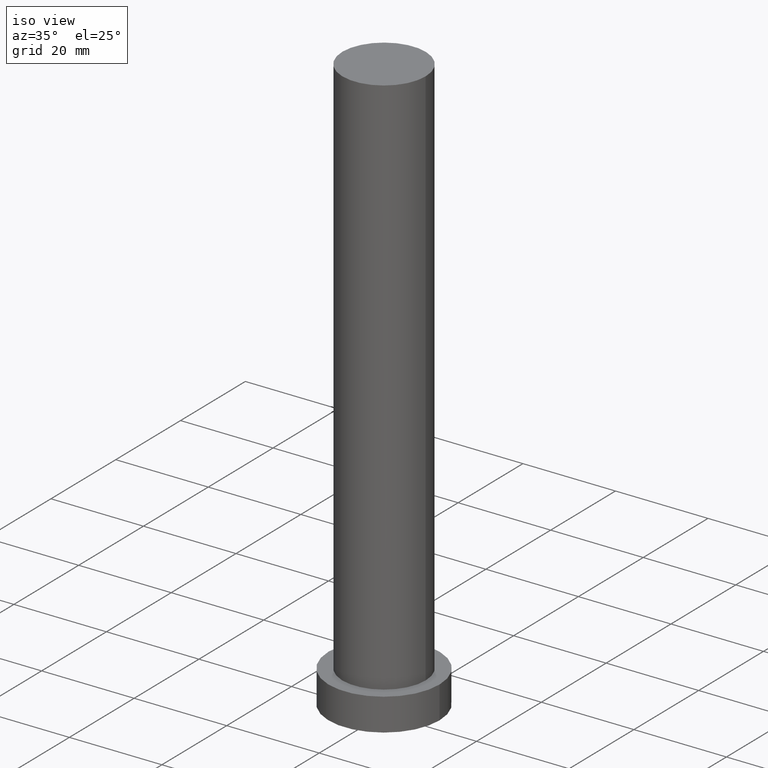
[diagram: clean part render]
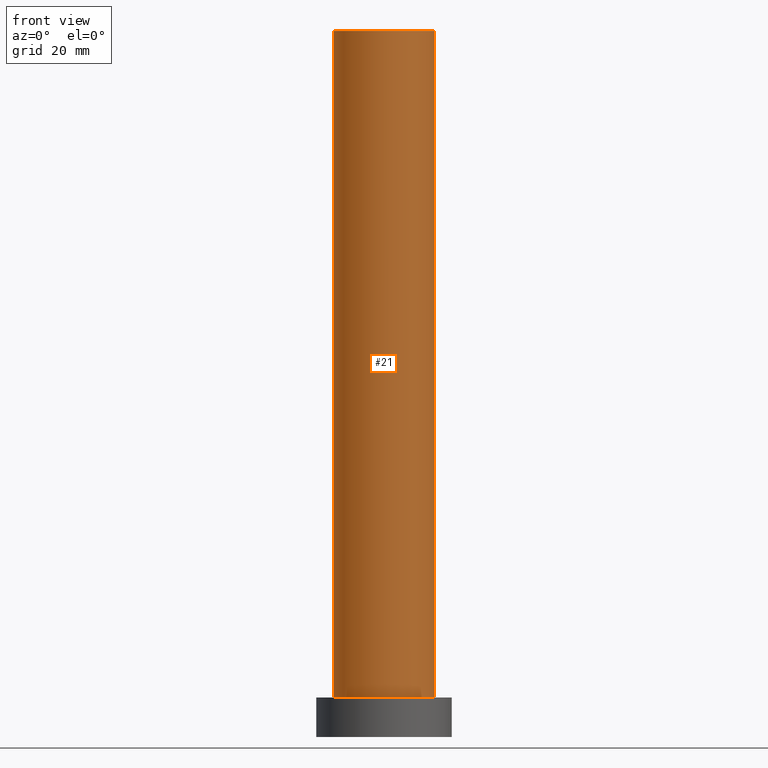
[diagram: tour spotlight — one face highlighted and labeled with its STEP entity id]
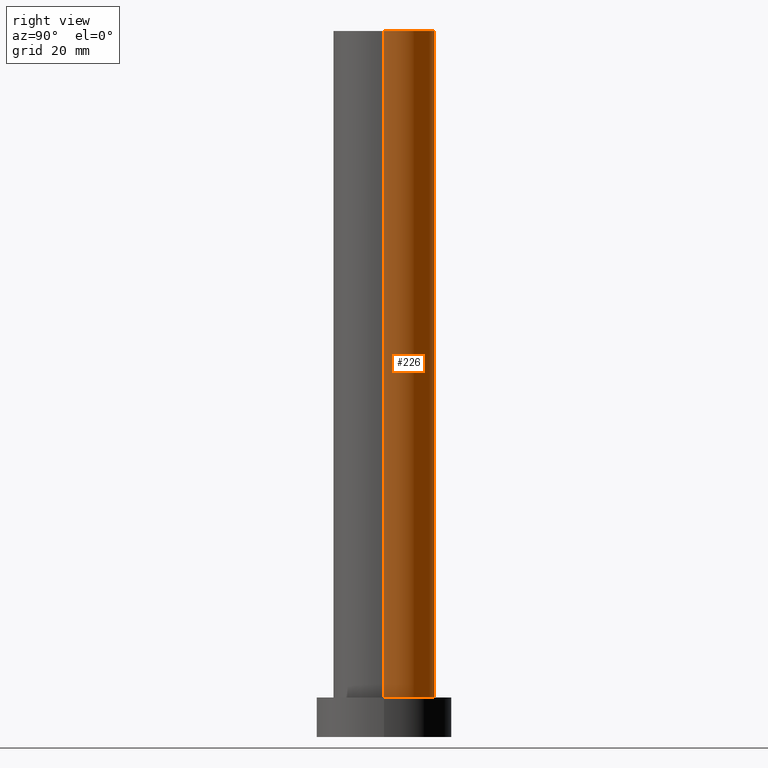
[diagram: tour spotlight — one face highlighted and labeled with its STEP entity id]
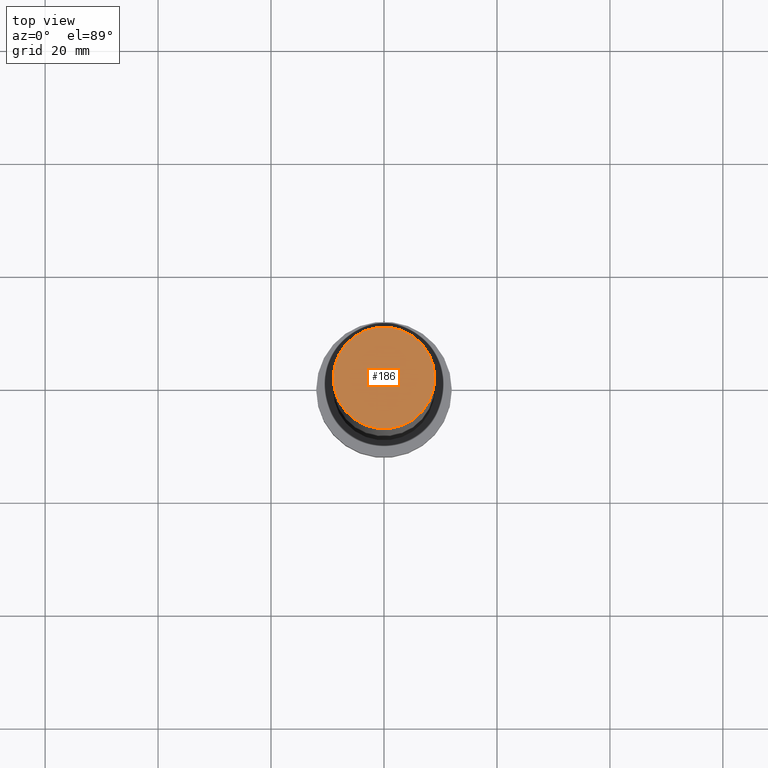
[diagram: tour spotlight — one face highlighted and labeled with its STEP entity id]
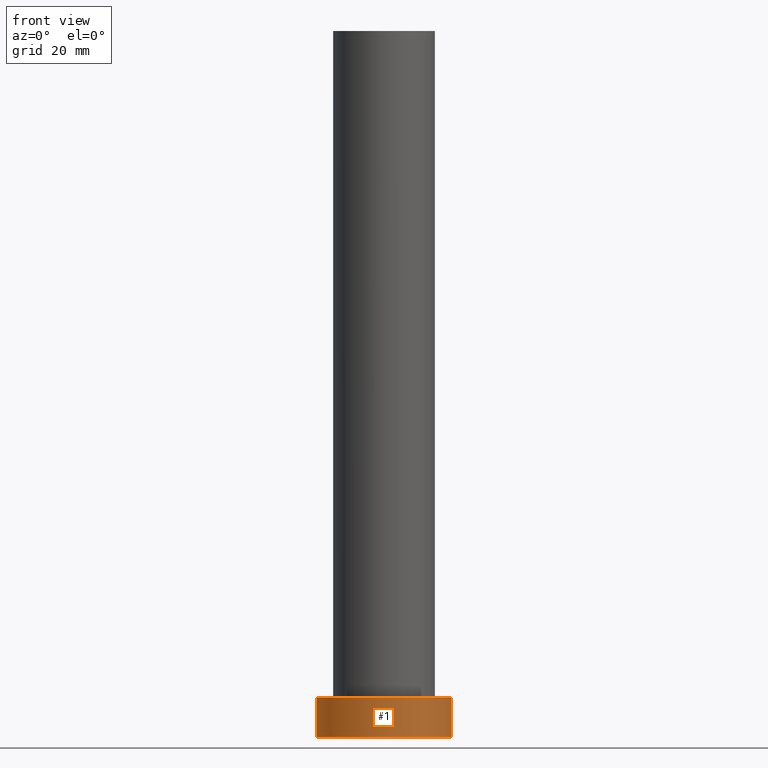
[diagram: tour spotlight — one face highlighted and labeled with its STEP entity id]
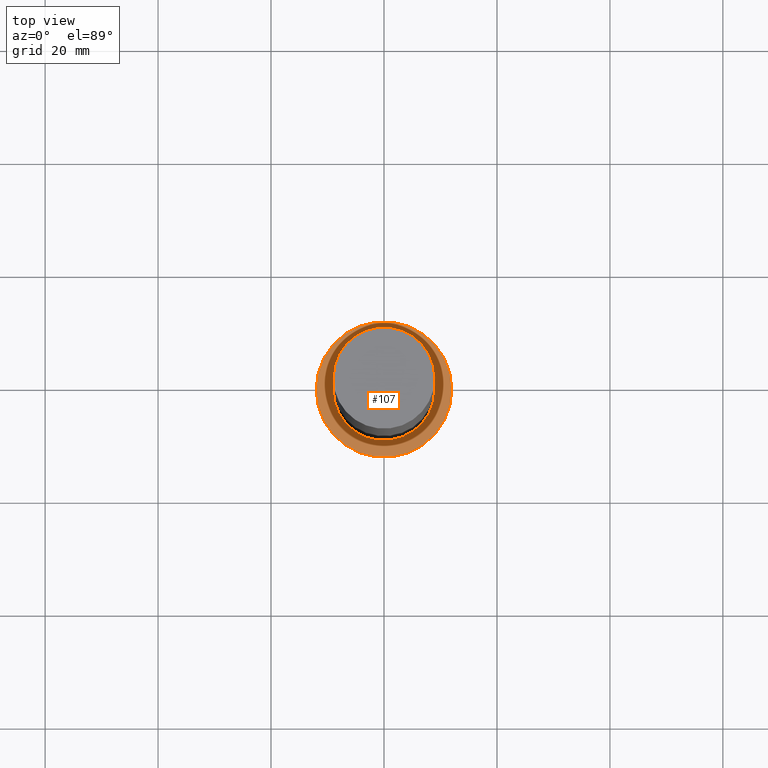
[diagram: tour spotlight — one face highlighted and labeled with its STEP entity id]
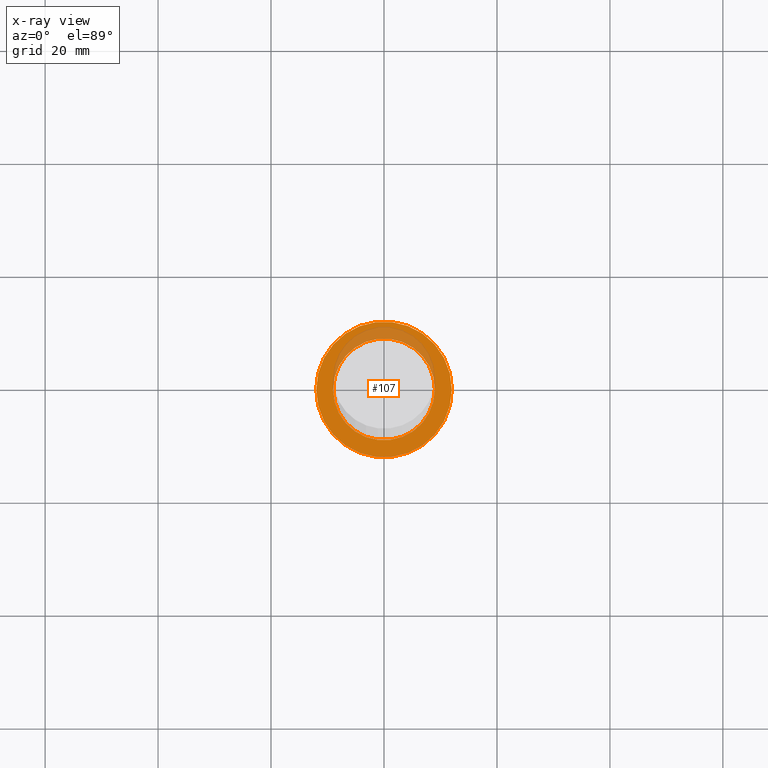
[diagram: x-ray of the same camera — body ghosted, this tour face saturated]
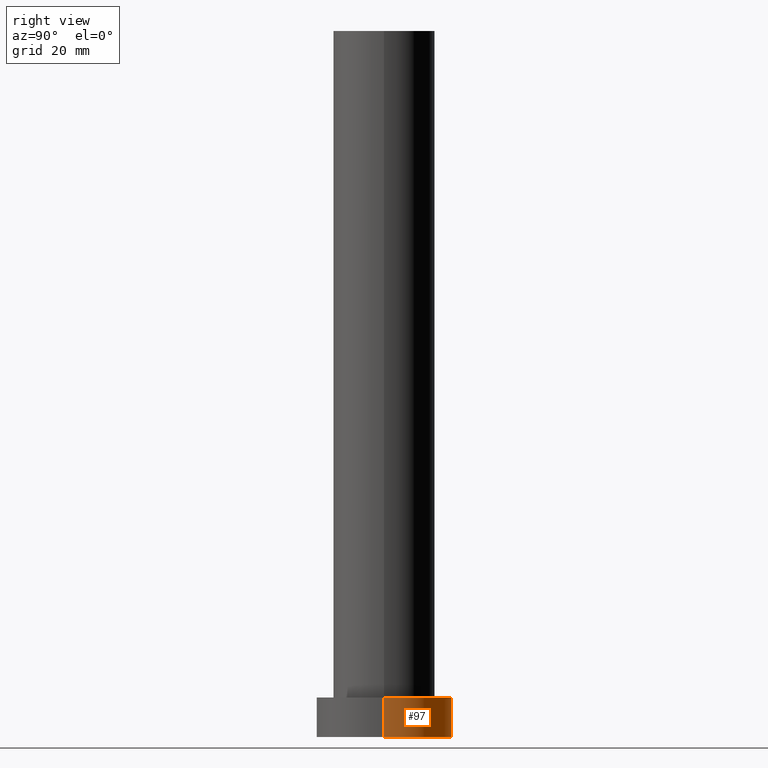
[diagram: tour spotlight — one face highlighted and labeled with its STEP entity id]
A machine part: a face-by-face anatomy tour. The part has 7 B-rep faces; the first image is the clean iso view, then the 6 largest visible faces are spotlighted one at a time (largest first), each with its STEP entity span.

Face 1 — front view, entity #21. In plain terms, the highlighted cylindrical surface (partial cylindrical patch) has radius 9 mm, axis along (-0, -0, -1).
Definition (entity closure, byte-faithful):
#2 = ORIENTED_EDGE ( 'NONE', *, *, #130, .T. ) ;
#8 = CARTESIAN_POINT ( 'NONE',  ( 0.000000000000000000, 0.000000000000000000, 125.0000000000000000 ) ) ;
#21 = ADVANCED_FACE ( 'NONE', ( #222 ), #67, .T. ) ;
#23 = EDGE_LOOP ( 'NONE', ( #163, #81, #2, #127 ) ) ;
#24 = AXIS2_PLACEMENT_3D ( 'NONE', #164, #241, #168 ) ;
#29 = AXIS2_PLACEMENT_3D ( 'NONE', #8, #239, #66 ) ;
#44 = CIRCLE ( 'NONE', #24, 9.000000000000000000 ) ;
#57 = EDGE_CURVE ( 'NONE', #106, #63, #44, .T. ) ;
#63 = VERTEX_POINT ( 'NONE', #215 ) ;
#66 = DIRECTION ( 'NONE',  ( -1.000000000000000000, 0.000000000000000000, 0.000000000000000000 ) ) ;
#67 = CYLINDRICAL_SURFACE ( 'NONE', #29, 9.000000000000000000 ) ;
#74 = DIRECTION ( 'NONE',  ( -0.000000000000000000, -0.000000000000000000, -1.000000000000000000 ) ) ;
#79 = DIRECTION ( 'NONE',  ( 1.000000000000000000, 0.000000000000000000, 0.000000000000000000 ) ) ;
#81 = ORIENTED_EDGE ( 'NONE', *, *, #57, .F. ) ;
#83 = VERTEX_POINT ( 'NONE', #178 ) ;
#84 = CARTESIAN_POINT ( 'NONE',  ( 0.000000000000000000, 0.000000000000000000, 7.000000000000000000 ) ) ;
#96 = LINE ( 'NONE', #116, #254 ) ;
#98 = VERTEX_POINT ( 'NONE', #245 ) ;
#106 = VERTEX_POINT ( 'NONE', #203 ) ;
#116 = CARTESIAN_POINT ( 'NONE',  ( 9.000000000000000000, 1.102182119232617714E-15, 125.0000000000000000 ) ) ;
#127 = ORIENTED_EDGE ( 'NONE', *, *, #244, .T. ) ;
#128 = LINE ( 'NONE', #183, #140 ) ;
#130 = EDGE_CURVE ( 'NONE', #106, #83, #128, .T. ) ;
#140 = VECTOR ( 'NONE', #74, 1000.000000000000000 ) ;
#159 = EDGE_CURVE ( 'NONE', #63, #98, #96, .T. ) ;
#162 = AXIS2_PLACEMENT_3D ( 'NONE', #84, #192, #79 ) ;
#163 = ORIENTED_EDGE ( 'NONE', *, *, #159, .F. ) ;
#164 = CARTESIAN_POINT ( 'NONE',  ( 0.000000000000000000, 0.000000000000000000, 125.0000000000000000 ) ) ;
#168 = DIRECTION ( 'NONE',  ( 1.000000000000000000, 0.000000000000000000, 0.000000000000000000 ) ) ;
#178 = CARTESIAN_POINT ( 'NONE',  ( -9.000000000000000000, 0.000000000000000000, 7.000000000000000000 ) ) ;
#183 = CARTESIAN_POINT ( 'NONE',  ( -9.000000000000000000, 0.000000000000000000, 125.0000000000000000 ) ) ;
#192 = DIRECTION ( 'NONE',  ( 0.000000000000000000, 0.000000000000000000, 1.000000000000000000 ) ) ;
#201 = DIRECTION ( 'NONE',  ( -0.000000000000000000, -0.000000000000000000, -1.000000000000000000 ) ) ;
#203 = CARTESIAN_POINT ( 'NONE',  ( -9.000000000000000000, 0.000000000000000000, 125.0000000000000000 ) ) ;
#209 = CIRCLE ( 'NONE', #162, 9.000000000000000000 ) ;
#215 = CARTESIAN_POINT ( 'NONE',  ( 9.000000000000000000, 1.102182119232617714E-15, 125.0000000000000000 ) ) ;
#222 = FACE_OUTER_BOUND ( 'NONE', #23, .T. ) ;
#239 = DIRECTION ( 'NONE',  ( -0.000000000000000000, -0.000000000000000000, -1.000000000000000000 ) ) ;
#241 = DIRECTION ( 'NONE',  ( 0.000000000000000000, 0.000000000000000000, 1.000000000000000000 ) ) ;
#244 = EDGE_CURVE ( 'NONE', #83, #98, #209, .T. ) ;
#245 = CARTESIAN_POINT ( 'NONE',  ( 9.000000000000000000, 1.102182119232617714E-15, 7.000000000000000000 ) ) ;
#254 = VECTOR ( 'NONE', #201, 1000.000000000000000 ) ;

Face 2 — right view, entity #226. In plain terms, the highlighted cylindrical surface (partial cylindrical patch) has radius 9 mm, axis along (-0, -0, -1).
Definition (entity closure, byte-faithful):
#9 = FACE_OUTER_BOUND ( 'NONE', #242, .T. ) ;
#12 = CARTESIAN_POINT ( 'NONE',  ( 0.000000000000000000, 0.000000000000000000, 125.0000000000000000 ) ) ;
#25 = DIRECTION ( 'NONE',  ( -0.000000000000000000, -0.000000000000000000, -1.000000000000000000 ) ) ;
#34 = DIRECTION ( 'NONE',  ( 1.000000000000000000, 0.000000000000000000, 0.000000000000000000 ) ) ;
#43 = CARTESIAN_POINT ( 'NONE',  ( 0.000000000000000000, 0.000000000000000000, 7.000000000000000000 ) ) ;
#48 = ORIENTED_EDGE ( 'NONE', *, *, #145, .F. ) ;
#50 = ORIENTED_EDGE ( 'NONE', *, *, #130, .F. ) ;
#55 = CIRCLE ( 'NONE', #230, 9.000000000000000000 ) ;
#59 = CARTESIAN_POINT ( 'NONE',  ( 0.000000000000000000, 0.000000000000000000, 125.0000000000000000 ) ) ;
#63 = VERTEX_POINT ( 'NONE', #215 ) ;
#65 = EDGE_CURVE ( 'NONE', #98, #83, #55, .T. ) ;
#74 = DIRECTION ( 'NONE',  ( -0.000000000000000000, -0.000000000000000000, -1.000000000000000000 ) ) ;
#83 = VERTEX_POINT ( 'NONE', #178 ) ;
#88 = DIRECTION ( 'NONE',  ( 0.000000000000000000, 0.000000000000000000, 1.000000000000000000 ) ) ;
#91 = ORIENTED_EDGE ( 'NONE', *, *, #159, .T. ) ;
#96 = LINE ( 'NONE', #116, #254 ) ;
#98 = VERTEX_POINT ( 'NONE', #245 ) ;
#106 = VERTEX_POINT ( 'NONE', #203 ) ;
#116 = CARTESIAN_POINT ( 'NONE',  ( 9.000000000000000000, 1.102182119232617714E-15, 125.0000000000000000 ) ) ;
#125 = DIRECTION ( 'NONE',  ( 1.000000000000000000, 0.000000000000000000, 0.000000000000000000 ) ) ;
#128 = LINE ( 'NONE', #183, #140 ) ;
#130 = EDGE_CURVE ( 'NONE', #106, #83, #128, .T. ) ;
#138 = DIRECTION ( 'NONE',  ( -1.000000000000000000, 0.000000000000000000, 0.000000000000000000 ) ) ;
#140 = VECTOR ( 'NONE', #74, 1000.000000000000000 ) ;
#145 = EDGE_CURVE ( 'NONE', #63, #106, #220, .T. ) ;
#146 = AXIS2_PLACEMENT_3D ( 'NONE', #12, #205, #34 ) ;
#159 = EDGE_CURVE ( 'NONE', #63, #98, #96, .T. ) ;
#178 = CARTESIAN_POINT ( 'NONE',  ( -9.000000000000000000, 0.000000000000000000, 7.000000000000000000 ) ) ;
#183 = CARTESIAN_POINT ( 'NONE',  ( -9.000000000000000000, 0.000000000000000000, 125.0000000000000000 ) ) ;
#188 = CYLINDRICAL_SURFACE ( 'NONE', #214, 9.000000000000000000 ) ;
#201 = DIRECTION ( 'NONE',  ( -0.000000000000000000, -0.000000000000000000, -1.000000000000000000 ) ) ;
#203 = CARTESIAN_POINT ( 'NONE',  ( -9.000000000000000000, 0.000000000000000000, 125.0000000000000000 ) ) ;
#205 = DIRECTION ( 'NONE',  ( 0.000000000000000000, 0.000000000000000000, 1.000000000000000000 ) ) ;
#214 = AXIS2_PLACEMENT_3D ( 'NONE', #59, #25, #138 ) ;
#215 = CARTESIAN_POINT ( 'NONE',  ( 9.000000000000000000, 1.102182119232617714E-15, 125.0000000000000000 ) ) ;
#220 = CIRCLE ( 'NONE', #146, 9.000000000000000000 ) ;
#226 = ADVANCED_FACE ( 'NONE', ( #9 ), #188, .T. ) ;
#230 = AXIS2_PLACEMENT_3D ( 'NONE', #43, #88, #125 ) ;
#235 = ORIENTED_EDGE ( 'NONE', *, *, #65, .T. ) ;
#242 = EDGE_LOOP ( 'NONE', ( #48, #91, #235, #50 ) ) ;
#245 = CARTESIAN_POINT ( 'NONE',  ( 9.000000000000000000, 1.102182119232617714E-15, 7.000000000000000000 ) ) ;
#254 = VECTOR ( 'NONE', #201, 1000.000000000000000 ) ;

Face 3 — top view, entity #186. In plain terms, the highlighted planar face has unit normal (0, 0, 1).
Definition (entity closure, byte-faithful):
#12 = CARTESIAN_POINT ( 'NONE',  ( 0.000000000000000000, 0.000000000000000000, 125.0000000000000000 ) ) ;
#17 = CARTESIAN_POINT ( 'NONE',  ( 0.000000000000000000, 0.000000000000000000, 125.0000000000000000 ) ) ;
#24 = AXIS2_PLACEMENT_3D ( 'NONE', #164, #241, #168 ) ;
#34 = DIRECTION ( 'NONE',  ( 1.000000000000000000, 0.000000000000000000, 0.000000000000000000 ) ) ;
#44 = CIRCLE ( 'NONE', #24, 9.000000000000000000 ) ;
#57 = EDGE_CURVE ( 'NONE', #106, #63, #44, .T. ) ;
#63 = VERTEX_POINT ( 'NONE', #215 ) ;
#71 = ORIENTED_EDGE ( 'NONE', *, *, #145, .T. ) ;
#106 = VERTEX_POINT ( 'NONE', #203 ) ;
#120 = ORIENTED_EDGE ( 'NONE', *, *, #57, .T. ) ;
#135 = EDGE_LOOP ( 'NONE', ( #120, #71 ) ) ;
#145 = EDGE_CURVE ( 'NONE', #63, #106, #220, .T. ) ;
#146 = AXIS2_PLACEMENT_3D ( 'NONE', #12, #205, #34 ) ;
#154 = PLANE ( 'NONE',  #177 ) ;
#164 = CARTESIAN_POINT ( 'NONE',  ( 0.000000000000000000, 0.000000000000000000, 125.0000000000000000 ) ) ;
#168 = DIRECTION ( 'NONE',  ( 1.000000000000000000, 0.000000000000000000, 0.000000000000000000 ) ) ;
#171 = FACE_OUTER_BOUND ( 'NONE', #135, .T. ) ;
#177 = AXIS2_PLACEMENT_3D ( 'NONE', #17, #249, #229 ) ;
#186 = ADVANCED_FACE ( 'NONE', ( #171 ), #154, .T. ) ;
#203 = CARTESIAN_POINT ( 'NONE',  ( -9.000000000000000000, 0.000000000000000000, 125.0000000000000000 ) ) ;
#205 = DIRECTION ( 'NONE',  ( 0.000000000000000000, 0.000000000000000000, 1.000000000000000000 ) ) ;
#215 = CARTESIAN_POINT ( 'NONE',  ( 9.000000000000000000, 1.102182119232617714E-15, 125.0000000000000000 ) ) ;
#220 = CIRCLE ( 'NONE', #146, 9.000000000000000000 ) ;
#229 = DIRECTION ( 'NONE',  ( 1.000000000000000000, 0.000000000000000000, -0.000000000000000000 ) ) ;
#241 = DIRECTION ( 'NONE',  ( 0.000000000000000000, 0.000000000000000000, 1.000000000000000000 ) ) ;
#249 = DIRECTION ( 'NONE',  ( 0.000000000000000000, 0.000000000000000000, 1.000000000000000000 ) ) ;

Face 4 — front view, entity #1. In plain terms, the highlighted cylindrical surface (partial cylindrical patch) has radius 12 mm, axis along (-0, -0, -1).
Definition (entity closure, byte-faithful):
#1 = ADVANCED_FACE ( 'NONE', ( #109 ), #94, .T. ) ;
#3 = EDGE_LOOP ( 'NONE', ( #149, #112, #221, #139 ) ) ;
#26 = CARTESIAN_POINT ( 'NONE',  ( -12.00000000000000178, 0.000000000000000000, 7.000000000000000000 ) ) ;
#35 = DIRECTION ( 'NONE',  ( 0.000000000000000000, 0.000000000000000000, 1.000000000000000000 ) ) ;
#41 = CIRCLE ( 'NONE', #180, 12.00000000000000178 ) ;
#53 = VERTEX_POINT ( 'NONE', #181 ) ;
#60 = AXIS2_PLACEMENT_3D ( 'NONE', #90, #236, #64 ) ;
#62 = CARTESIAN_POINT ( 'NONE',  ( -12.00000000000000178, 0.000000000000000000, 7.000000000000000000 ) ) ;
#64 = DIRECTION ( 'NONE',  ( -1.000000000000000000, 0.000000000000000000, 0.000000000000000000 ) ) ;
#72 = EDGE_CURVE ( 'NONE', #240, #194, #197, .T. ) ;
#82 = CARTESIAN_POINT ( 'NONE',  ( 12.00000000000000178, 1.469576158976824144E-15, 7.000000000000000000 ) ) ;
#90 = CARTESIAN_POINT ( 'NONE',  ( 0.000000000000000000, 0.000000000000000000, 7.000000000000000000 ) ) ;
#92 = AXIS2_PLACEMENT_3D ( 'NONE', #156, #133, #114 ) ;
#94 = CYLINDRICAL_SURFACE ( 'NONE', #60, 12.00000000000000178 ) ;
#108 = DIRECTION ( 'NONE',  ( -0.000000000000000000, -0.000000000000000000, -1.000000000000000000 ) ) ;
#109 = FACE_OUTER_BOUND ( 'NONE', #3, .T. ) ;
#112 = ORIENTED_EDGE ( 'NONE', *, *, #115, .F. ) ;
#114 = DIRECTION ( 'NONE',  ( 1.000000000000000000, 0.000000000000000000, 0.000000000000000000 ) ) ;
#115 = EDGE_CURVE ( 'NONE', #240, #233, #246, .T. ) ;
#118 = DIRECTION ( 'NONE',  ( 1.000000000000000000, 0.000000000000000000, 0.000000000000000000 ) ) ;
#133 = DIRECTION ( 'NONE',  ( 0.000000000000000000, 0.000000000000000000, 1.000000000000000000 ) ) ;
#136 = CARTESIAN_POINT ( 'NONE',  ( -12.00000000000000178, 0.000000000000000000, 0.000000000000000000 ) ) ;
#139 = ORIENTED_EDGE ( 'NONE', *, *, #198, .T. ) ;
#149 = ORIENTED_EDGE ( 'NONE', *, *, #234, .F. ) ;
#156 = CARTESIAN_POINT ( 'NONE',  ( 0.000000000000000000, 0.000000000000000000, 7.000000000000000000 ) ) ;
#158 = LINE ( 'NONE', #161, #238 ) ;
#161 = CARTESIAN_POINT ( 'NONE',  ( 12.00000000000000178, 1.469576158976824144E-15, 7.000000000000000000 ) ) ;
#180 = AXIS2_PLACEMENT_3D ( 'NONE', #208, #35, #118 ) ;
#181 = CARTESIAN_POINT ( 'NONE',  ( 12.00000000000000178, 1.469576158976824144E-15, 0.000000000000000000 ) ) ;
#194 = VERTEX_POINT ( 'NONE', #136 ) ;
#197 = LINE ( 'NONE', #26, #253 ) ;
#198 = EDGE_CURVE ( 'NONE', #194, #53, #41, .T. ) ;
#208 = CARTESIAN_POINT ( 'NONE',  ( 0.000000000000000000, 0.000000000000000000, 0.000000000000000000 ) ) ;
#221 = ORIENTED_EDGE ( 'NONE', *, *, #72, .T. ) ;
#233 = VERTEX_POINT ( 'NONE', #82 ) ;
#234 = EDGE_CURVE ( 'NONE', #233, #53, #158, .T. ) ;
#236 = DIRECTION ( 'NONE',  ( -0.000000000000000000, -0.000000000000000000, -1.000000000000000000 ) ) ;
#238 = VECTOR ( 'NONE', #255, 1000.000000000000000 ) ;
#240 = VERTEX_POINT ( 'NONE', #62 ) ;
#246 = CIRCLE ( 'NONE', #92, 12.00000000000000178 ) ;
#253 = VECTOR ( 'NONE', #108, 1000.000000000000000 ) ;
#255 = DIRECTION ( 'NONE',  ( -0.000000000000000000, -0.000000000000000000, -1.000000000000000000 ) ) ;

Face 5 — top view, entity #107. An x-ray twin of the same camera follows (body ghosted, this face saturated) — the face is partly hidden behind the body. In plain terms, the highlighted planar face has unit normal (0, 0, 1).
Definition (entity closure, byte-faithful):
#28 = EDGE_CURVE ( 'NONE', #233, #240, #219, .T. ) ;
#30 = CARTESIAN_POINT ( 'NONE',  ( 0.000000000000000000, 0.000000000000000000, 7.000000000000000000 ) ) ;
#33 = DIRECTION ( 'NONE',  ( 1.000000000000000000, 0.000000000000000000, -0.000000000000000000 ) ) ;
#43 = CARTESIAN_POINT ( 'NONE',  ( 0.000000000000000000, 0.000000000000000000, 7.000000000000000000 ) ) ;
#46 = DIRECTION ( 'NONE',  ( 0.000000000000000000, 0.000000000000000000, 1.000000000000000000 ) ) ;
#49 = CARTESIAN_POINT ( 'NONE',  ( 0.000000000000000000, 0.000000000000000000, 7.000000000000000000 ) ) ;
#55 = CIRCLE ( 'NONE', #230, 9.000000000000000000 ) ;
#61 = ORIENTED_EDGE ( 'NONE', *, *, #65, .F. ) ;
#62 = CARTESIAN_POINT ( 'NONE',  ( -12.00000000000000178, 0.000000000000000000, 7.000000000000000000 ) ) ;
#65 = EDGE_CURVE ( 'NONE', #98, #83, #55, .T. ) ;
#75 = FACE_BOUND ( 'NONE', #103, .T. ) ;
#79 = DIRECTION ( 'NONE',  ( 1.000000000000000000, 0.000000000000000000, 0.000000000000000000 ) ) ;
#82 = CARTESIAN_POINT ( 'NONE',  ( 12.00000000000000178, 1.469576158976824144E-15, 7.000000000000000000 ) ) ;
#83 = VERTEX_POINT ( 'NONE', #178 ) ;
#84 = CARTESIAN_POINT ( 'NONE',  ( 0.000000000000000000, 0.000000000000000000, 7.000000000000000000 ) ) ;
#85 = AXIS2_PLACEMENT_3D ( 'NONE', #49, #191, #33 ) ;
#88 = DIRECTION ( 'NONE',  ( 0.000000000000000000, 0.000000000000000000, 1.000000000000000000 ) ) ;
#92 = AXIS2_PLACEMENT_3D ( 'NONE', #156, #133, #114 ) ;
#98 = VERTEX_POINT ( 'NONE', #245 ) ;
#103 = EDGE_LOOP ( 'NONE', ( #113, #61 ) ) ;
#107 = ADVANCED_FACE ( 'NONE', ( #75, #151 ), #227, .T. ) ;
#113 = ORIENTED_EDGE ( 'NONE', *, *, #244, .F. ) ;
#114 = DIRECTION ( 'NONE',  ( 1.000000000000000000, 0.000000000000000000, 0.000000000000000000 ) ) ;
#115 = EDGE_CURVE ( 'NONE', #240, #233, #246, .T. ) ;
#125 = DIRECTION ( 'NONE',  ( 1.000000000000000000, 0.000000000000000000, 0.000000000000000000 ) ) ;
#133 = DIRECTION ( 'NONE',  ( 0.000000000000000000, 0.000000000000000000, 1.000000000000000000 ) ) ;
#143 = DIRECTION ( 'NONE',  ( 1.000000000000000000, 0.000000000000000000, 0.000000000000000000 ) ) ;
#151 = FACE_OUTER_BOUND ( 'NONE', #248, .T. ) ;
#153 = ORIENTED_EDGE ( 'NONE', *, *, #28, .T. ) ;
#156 = CARTESIAN_POINT ( 'NONE',  ( 0.000000000000000000, 0.000000000000000000, 7.000000000000000000 ) ) ;
#160 = AXIS2_PLACEMENT_3D ( 'NONE', #30, #46, #143 ) ;
#162 = AXIS2_PLACEMENT_3D ( 'NONE', #84, #192, #79 ) ;
#178 = CARTESIAN_POINT ( 'NONE',  ( -9.000000000000000000, 0.000000000000000000, 7.000000000000000000 ) ) ;
#182 = ORIENTED_EDGE ( 'NONE', *, *, #115, .T. ) ;
#191 = DIRECTION ( 'NONE',  ( 0.000000000000000000, 0.000000000000000000, 1.000000000000000000 ) ) ;
#192 = DIRECTION ( 'NONE',  ( 0.000000000000000000, 0.000000000000000000, 1.000000000000000000 ) ) ;
#209 = CIRCLE ( 'NONE', #162, 9.000000000000000000 ) ;
#219 = CIRCLE ( 'NONE', #160, 12.00000000000000178 ) ;
#227 = PLANE ( 'NONE',  #85 ) ;
#230 = AXIS2_PLACEMENT_3D ( 'NONE', #43, #88, #125 ) ;
#233 = VERTEX_POINT ( 'NONE', #82 ) ;
#240 = VERTEX_POINT ( 'NONE', #62 ) ;
#244 = EDGE_CURVE ( 'NONE', #83, #98, #209, .T. ) ;
#245 = CARTESIAN_POINT ( 'NONE',  ( 9.000000000000000000, 1.102182119232617714E-15, 7.000000000000000000 ) ) ;
#246 = CIRCLE ( 'NONE', #92, 12.00000000000000178 ) ;
#248 = EDGE_LOOP ( 'NONE', ( #182, #153 ) ) ;

Face 6 — right view, entity #97. In plain terms, the highlighted cylindrical surface (partial cylindrical patch) has radius 12 mm, axis along (-0, -0, -1).
Definition (entity closure, byte-faithful):
#4 = CYLINDRICAL_SURFACE ( 'NONE', #195, 12.00000000000000178 ) ;
#5 = EDGE_LOOP ( 'NONE', ( #68, #7, #147, #87 ) ) ;
#7 = ORIENTED_EDGE ( 'NONE', *, *, #234, .T. ) ;
#10 = EDGE_CURVE ( 'NONE', #53, #194, #13, .T. ) ;
#13 = CIRCLE ( 'NONE', #217, 12.00000000000000178 ) ;
#26 = CARTESIAN_POINT ( 'NONE',  ( -12.00000000000000178, 0.000000000000000000, 7.000000000000000000 ) ) ;
#28 = EDGE_CURVE ( 'NONE', #233, #240, #219, .T. ) ;
#30 = CARTESIAN_POINT ( 'NONE',  ( 0.000000000000000000, 0.000000000000000000, 7.000000000000000000 ) ) ;
#46 = DIRECTION ( 'NONE',  ( 0.000000000000000000, 0.000000000000000000, 1.000000000000000000 ) ) ;
#53 = VERTEX_POINT ( 'NONE', #181 ) ;
#62 = CARTESIAN_POINT ( 'NONE',  ( -12.00000000000000178, 0.000000000000000000, 7.000000000000000000 ) ) ;
#68 = ORIENTED_EDGE ( 'NONE', *, *, #28, .F. ) ;
#72 = EDGE_CURVE ( 'NONE', #240, #194, #197, .T. ) ;
#82 = CARTESIAN_POINT ( 'NONE',  ( 12.00000000000000178, 1.469576158976824144E-15, 7.000000000000000000 ) ) ;
#87 = ORIENTED_EDGE ( 'NONE', *, *, #72, .F. ) ;
#97 = ADVANCED_FACE ( 'NONE', ( #144 ), #4, .T. ) ;
#108 = DIRECTION ( 'NONE',  ( -0.000000000000000000, -0.000000000000000000, -1.000000000000000000 ) ) ;
#131 = DIRECTION ( 'NONE',  ( -1.000000000000000000, 0.000000000000000000, 0.000000000000000000 ) ) ;
#136 = CARTESIAN_POINT ( 'NONE',  ( -12.00000000000000178, 0.000000000000000000, 0.000000000000000000 ) ) ;
#143 = DIRECTION ( 'NONE',  ( 1.000000000000000000, 0.000000000000000000, 0.000000000000000000 ) ) ;
#144 = FACE_OUTER_BOUND ( 'NONE', #5, .T. ) ;
#147 = ORIENTED_EDGE ( 'NONE', *, *, #10, .T. ) ;
#158 = LINE ( 'NONE', #161, #238 ) ;
#160 = AXIS2_PLACEMENT_3D ( 'NONE', #30, #46, #143 ) ;
#161 = CARTESIAN_POINT ( 'NONE',  ( 12.00000000000000178, 1.469576158976824144E-15, 7.000000000000000000 ) ) ;
#165 = CARTESIAN_POINT ( 'NONE',  ( 0.000000000000000000, 0.000000000000000000, 0.000000000000000000 ) ) ;
#181 = CARTESIAN_POINT ( 'NONE',  ( 12.00000000000000178, 1.469576158976824144E-15, 0.000000000000000000 ) ) ;
#194 = VERTEX_POINT ( 'NONE', #136 ) ;
#195 = AXIS2_PLACEMENT_3D ( 'NONE', #237, #224, #131 ) ;
#197 = LINE ( 'NONE', #26, #253 ) ;
#200 = DIRECTION ( 'NONE',  ( 0.000000000000000000, 0.000000000000000000, 1.000000000000000000 ) ) ;
#217 = AXIS2_PLACEMENT_3D ( 'NONE', #165, #200, #218 ) ;
#218 = DIRECTION ( 'NONE',  ( 1.000000000000000000, 0.000000000000000000, 0.000000000000000000 ) ) ;
#219 = CIRCLE ( 'NONE', #160, 12.00000000000000178 ) ;
#224 = DIRECTION ( 'NONE',  ( -0.000000000000000000, -0.000000000000000000, -1.000000000000000000 ) ) ;
#233 = VERTEX_POINT ( 'NONE', #82 ) ;
#234 = EDGE_CURVE ( 'NONE', #233, #53, #158, .T. ) ;
#237 = CARTESIAN_POINT ( 'NONE',  ( 0.000000000000000000, 0.000000000000000000, 7.000000000000000000 ) ) ;
#238 = VECTOR ( 'NONE', #255, 1000.000000000000000 ) ;
#240 = VERTEX_POINT ( 'NONE', #62 ) ;
#253 = VECTOR ( 'NONE', #108, 1000.000000000000000 ) ;
#255 = DIRECTION ( 'NONE',  ( -0.000000000000000000, -0.000000000000000000, -1.000000000000000000 ) ) ;